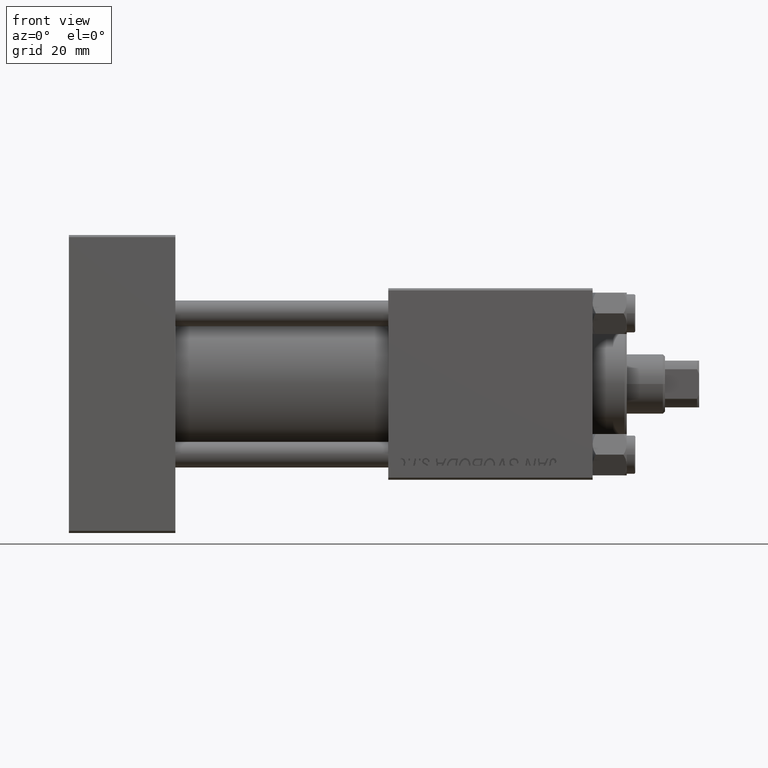
[diagram: clean part render]
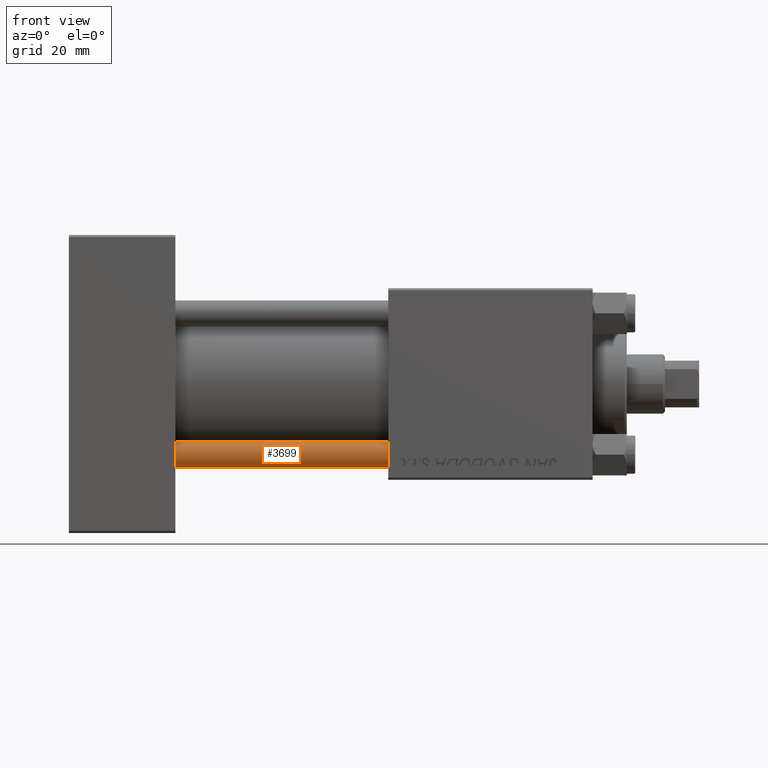
[diagram: same view with one face highlighted and labeled with its STEP entity id]
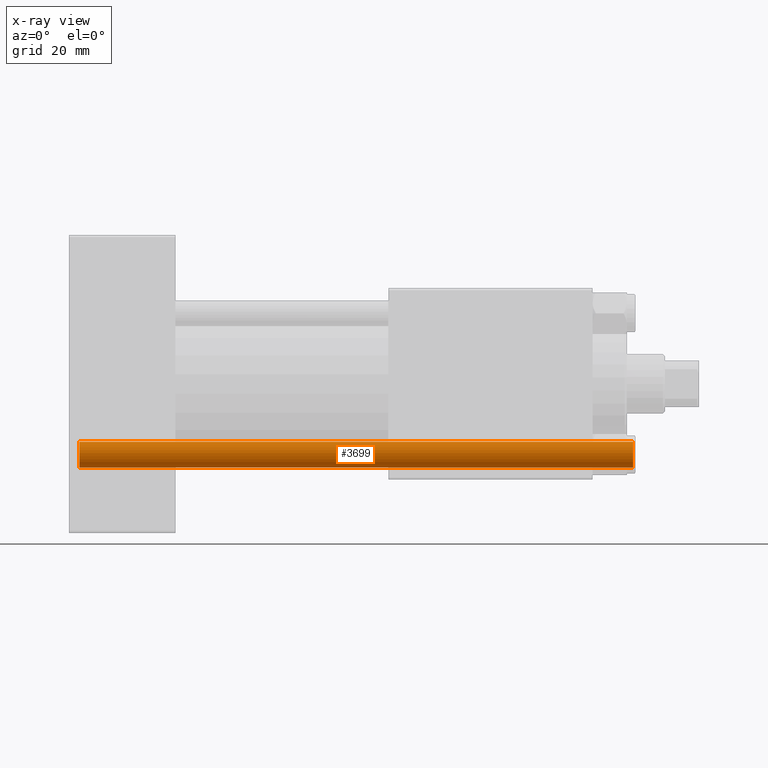
[diagram: x-ray of the same camera — body ghosted, the highlighted face saturated]
A machine part, front view. The second image highlights one B-rep face of the part: STEP entity #3699.
The next image is the same camera in x-ray: the body ghosted, the highlighted face saturated — about 0% of this face is hidden behind the body in this view.
In plain terms, the highlighted cylindrical surface (edge-blend (fillet) strip) has radius 3 mm, axis along (1, -0, -0).
Its self-contained STEP definition (entity closure, byte-faithful):
#493 = EDGE_CURVE ( 'NONE', #26367, #43692, #12054, .T. ) ;
#647 = DIRECTION ( 'NONE',  ( -1.000000000000000000, 0.000000000000000000, 0.000000000000000000 ) ) ;
#1274 = CARTESIAN_POINT ( 'NONE',  ( 0.000000000000000000, 0.000000000000000000, 130.5000000000000284 ) ) ;
#2282 = CARTESIAN_POINT ( 'NONE',  ( 0.000000000000000000, 0.000000000000000000, 0.5000000000000281997 ) ) ;
#3699 = ADVANCED_FACE ( 'NONE', ( #36658 ), #12217, .T. ) ;
#3836 = CARTESIAN_POINT ( 'NONE',  ( -3.000000000000000444, 0.000000000000000000, 130.5000000000000284 ) ) ;
#5172 = VERTEX_POINT ( 'NONE', #30023 ) ;
#5442 = ORIENTED_EDGE ( 'NONE', *, *, #46879, .T. ) ;
#5960 = DIRECTION ( 'NONE',  ( -0.000000000000000000, -0.000000000000000000, 1.000000000000000000 ) ) ;
#7012 = DIRECTION ( 'NONE',  ( -0.000000000000000000, -0.000000000000000000, -1.000000000000000000 ) ) ;
#7853 = CARTESIAN_POINT ( 'NONE',  ( -3.000000000000000444, 0.000000000000000000, 131.0000000000000000 ) ) ;
#11068 = EDGE_CURVE ( 'NONE', #5172, #37760, #46729, .T. ) ;
#12054 = LINE ( 'NONE', #7853, #23405 ) ;
#12134 = CIRCLE ( 'NONE', #28910, 3.000000000000000444 ) ;
#12217 = CYLINDRICAL_SURFACE ( 'NONE', #35263, 3.000000000000000444 ) ;
#12405 = CARTESIAN_POINT ( 'NONE',  ( -3.000000000000000444, 0.000000000000000000, 0.5000000000000281997 ) ) ;
#12528 = ORIENTED_EDGE ( 'NONE', *, *, #11068, .F. ) ;
#14626 = EDGE_CURVE ( 'NONE', #5172, #26367, #12134, .T. ) ;
#17300 = DIRECTION ( 'NONE',  ( 0.000000000000000000, 0.000000000000000000, -1.000000000000000000 ) ) ;
#20437 = ORIENTED_EDGE ( 'NONE', *, *, #14626, .T. ) ;
#21157 = DIRECTION ( 'NONE',  ( -0.000000000000000000, -0.000000000000000000, -1.000000000000000000 ) ) ;
#23405 = VECTOR ( 'NONE', #44395, 1000.000000000000000 ) ;
#25902 = CARTESIAN_POINT ( 'NONE',  ( 3.000000000000000444, 3.673940397442060361E-16, 0.5000000000000281997 ) ) ;
#26000 = AXIS2_PLACEMENT_3D ( 'NONE', #2282, #5960, #34087 ) ;
#26367 = VERTEX_POINT ( 'NONE', #3836 ) ;
#28804 = VECTOR ( 'NONE', #7012, 1000.000000000000000 ) ;
#28910 = AXIS2_PLACEMENT_3D ( 'NONE', #1274, #17300, #41500 ) ;
#30023 = CARTESIAN_POINT ( 'NONE',  ( 3.000000000000000444, 3.673940397442060361E-16, 130.5000000000000284 ) ) ;
#30942 = CARTESIAN_POINT ( 'NONE',  ( 3.000000000000000444, 3.673940397442060361E-16, 131.0000000000000000 ) ) ;
#32455 = CARTESIAN_POINT ( 'NONE',  ( 0.000000000000000000, 0.000000000000000000, 131.0000000000000000 ) ) ;
#34052 = ORIENTED_EDGE ( 'NONE', *, *, #493, .T. ) ;
#34087 = DIRECTION ( 'NONE',  ( 1.000000000000000000, 0.000000000000000000, 0.000000000000000000 ) ) ;
#35263 = AXIS2_PLACEMENT_3D ( 'NONE', #32455, #21157, #647 ) ;
#35684 = EDGE_LOOP ( 'NONE', ( #12528, #20437, #34052, #5442 ) ) ;
#36658 = FACE_OUTER_BOUND ( 'NONE', #35684, .T. ) ;
#37760 = VERTEX_POINT ( 'NONE', #25902 ) ;
#41500 = DIRECTION ( 'NONE',  ( 1.000000000000000000, 0.000000000000000000, 0.000000000000000000 ) ) ;
#43692 = VERTEX_POINT ( 'NONE', #12405 ) ;
#44395 = DIRECTION ( 'NONE',  ( -0.000000000000000000, -0.000000000000000000, -1.000000000000000000 ) ) ;
#46729 = LINE ( 'NONE', #30942, #28804 ) ;
#46879 = EDGE_CURVE ( 'NONE', #43692, #37760, #51193, .T. ) ;
#51193 = CIRCLE ( 'NONE', #26000, 3.000000000000000444 ) ;